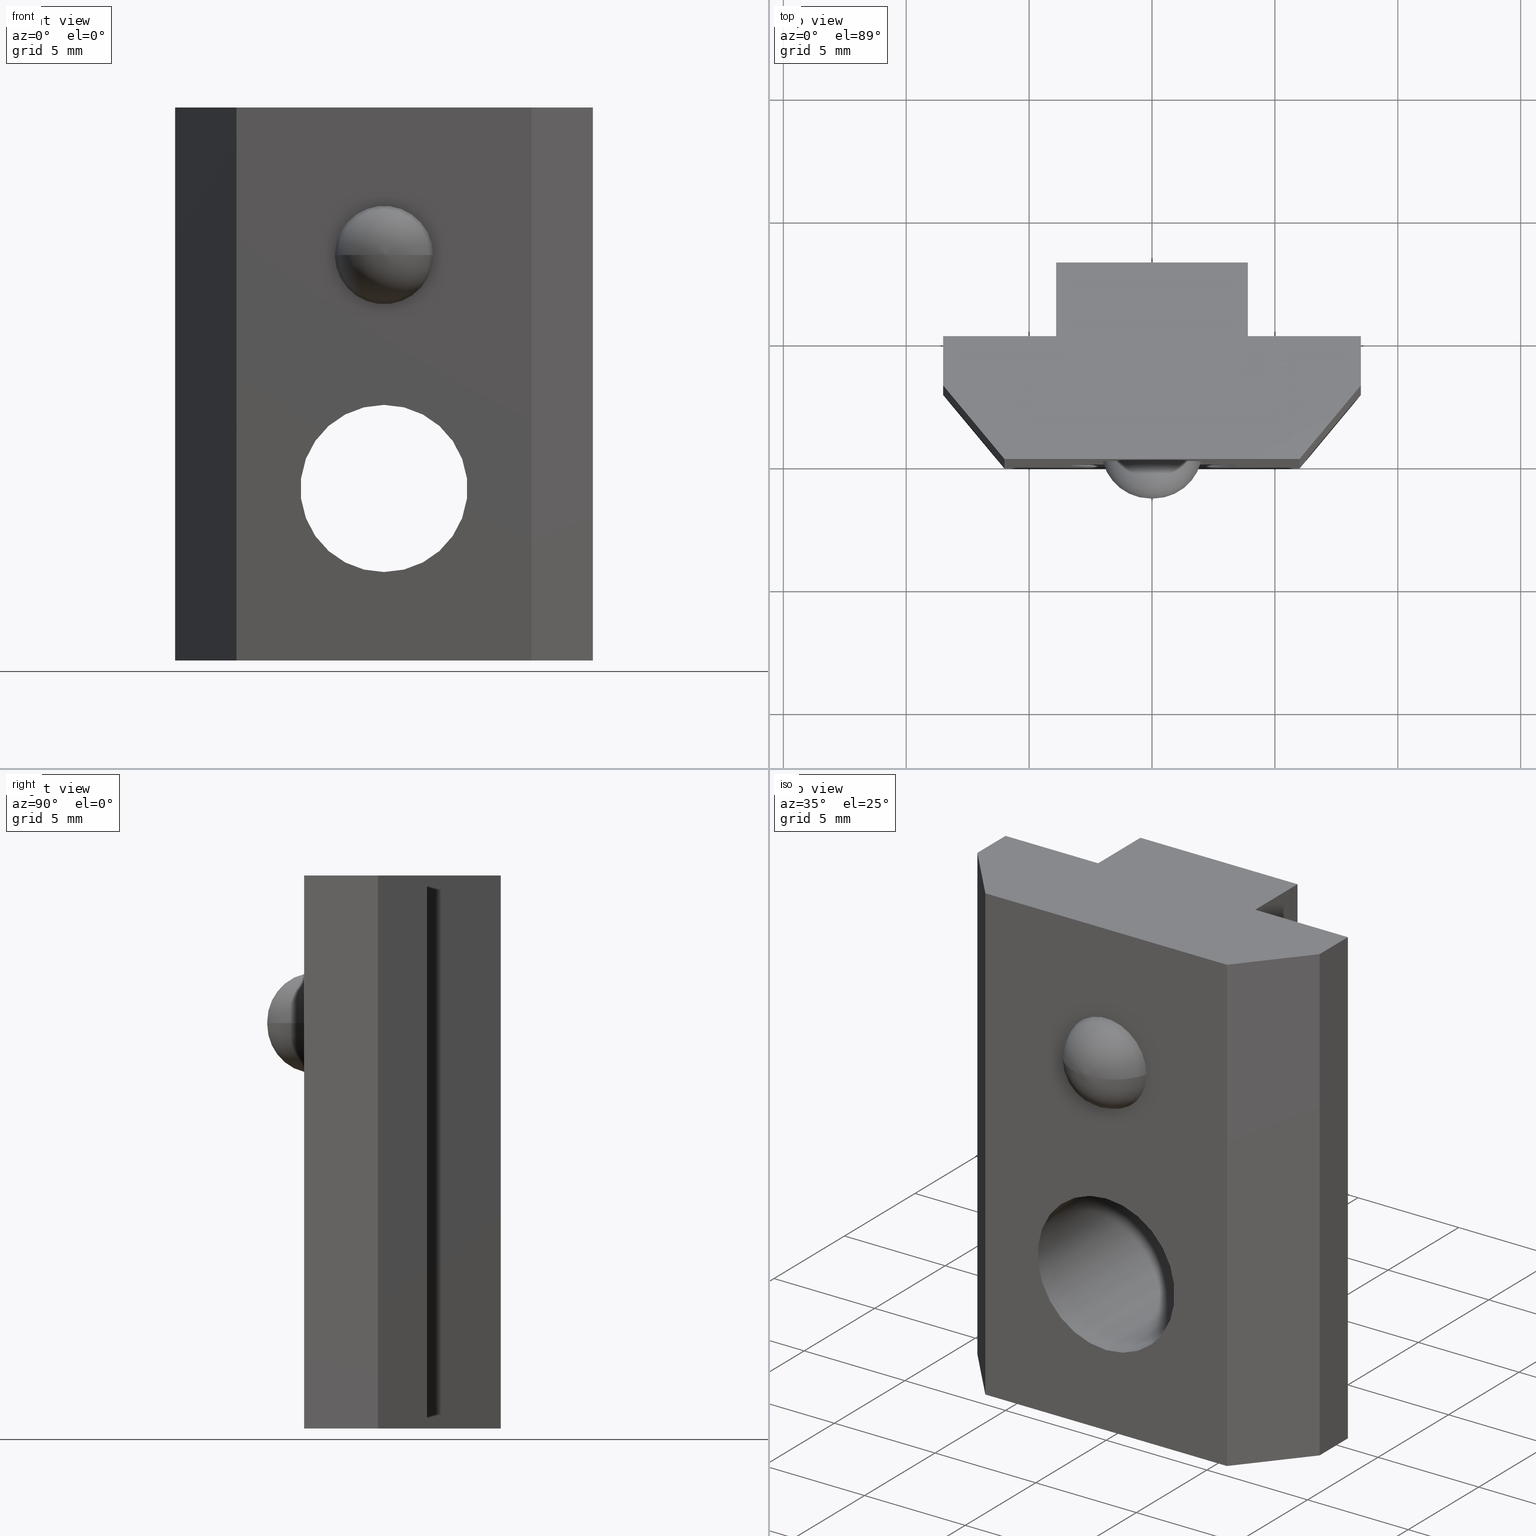
[diagram: canonical four-view strip — front | top / right | iso, engineering-drawing reading convention]
A machine part, canonical four-view strip (front | top / right | iso — engineering-drawing reading convention). The complete STEP part file that produces these views, byte-faithful:
ISO-10303-21;
HEADER;
FILE_DESCRIPTION (( 'STEP AP203' ),
    '1' );
FILE_NAME ('C32-83.STEP',
    '2018-03-26T19:23:06',
    ( 'User2' ),
    ( '' ),
    'SwSTEP 2.0',
    'SolidWorks 2007',
    '' );
FILE_SCHEMA (( 'CONFIG_CONTROL_DESIGN' ));
ENDSEC;

DATA;
#1 = CARTESIAN_POINT ( 'NONE',  ( -5.204170427930421300E-015, 7.999999999999998200, 7.000000000000000000 ) ) ;
#2 = DIRECTION ( 'NONE',  ( -0.0000000000000000000, -0.0000000000000000000, -1.000000000000000000 ) ) ;
#3 = DIRECTION ( 'NONE',  ( -1.169020134121797000E-016, -1.000000000000000000, 0.0000000000000000000 ) ) ;
#4 = CARTESIAN_POINT ( 'NONE',  ( 5.999999999999998200, -2.872400319922979400E-015, 0.0000000000000000000 ) ) ;
#5 = DIRECTION ( 'NONE',  ( 1.000000000000000000, 0.0000000000000000000, 0.0000000000000000000 ) ) ;
#6 = CARTESIAN_POINT ( 'NONE',  ( -8.500000000000001800, 3.000000000000000900, 0.0000000000000000000 ) ) ;
#7 = DIRECTION ( 'NONE',  ( 0.0000000000000000000, -1.000000000000000000, 0.0000000000000000000 ) ) ;
#8 = DIRECTION ( 'NONE',  ( -0.0000000000000000000, -0.0000000000000000000, -1.000000000000000000 ) ) ;
#9 = CARTESIAN_POINT ( 'NONE',  ( 3.899999999999997200, 4.999999999999999100, 22.50000000000000000 ) ) ;
#10 = DIRECTION ( 'NONE',  ( -1.169020134121797000E-016, -1.000000000000000000, 0.0000000000000000000 ) ) ;
#11 = DIRECTION ( 'NONE',  ( 2.224004456380521400E-016, -1.000000000000000000, 0.0000000000000000000 ) ) ;
#12 = DIRECTION ( 'NONE',  ( 0.0000000000000000000, 0.0000000000000000000, 1.000000000000000000 ) ) ;
#13 = CARTESIAN_POINT ( 'NONE',  ( -8.500000000000001800, 3.000000000000000900, 22.50000000000000000 ) ) ;
#14 = CARTESIAN_POINT ( 'NONE',  ( -3.900000000000005200, 7.999999999999998200, 22.50000000000000000 ) ) ;
#15 = DIRECTION ( 'NONE',  ( 0.0000000000000000000, 0.0000000000000000000, 1.000000000000000000 ) ) ;
#16 = DIRECTION ( 'NONE',  ( -1.000000000000000000, 0.0000000000000000000, 0.0000000000000000000 ) ) ;
#17 = DIRECTION ( 'NONE',  ( -0.0000000000000000000, 1.000000000000000000, -0.0000000000000000000 ) ) ;
#18 = DIRECTION ( 'NONE',  ( -1.169020134121797000E-016, -1.000000000000000000, 0.0000000000000000000 ) ) ;
#19 = CARTESIAN_POINT ( 'NONE',  ( 3.899999999999996400, 8.000000000000000000, 22.50000000000000000 ) ) ;
#20 = DIRECTION ( 'NONE',  ( 0.0000000000000000000, 1.000000000000000000, 0.0000000000000000000 ) ) ;
#21 = DIRECTION ( 'NONE',  ( -0.0000000000000000000, 1.000000000000000000, -0.0000000000000000000 ) ) ;
#22 = CARTESIAN_POINT ( 'NONE',  ( -5.204170427930421300E-015, 7.999999999999998200, 7.000000000000000000 ) ) ;
#23 = CARTESIAN_POINT ( 'NONE',  ( -8.500000000000001800, 5.000000000000000000, 22.50000000000000000 ) ) ;
#24 = DIRECTION ( 'NONE',  ( 0.6401843996644800400, -0.7682212795973756300, 0.0000000000000000000 ) ) ;
#25 = CARTESIAN_POINT ( 'NONE',  ( -5.204170427930421300E-015, 7.999999999999998200, 10.40000000000000000 ) ) ;
#26 = CARTESIAN_POINT ( 'NONE',  ( 0.06350832689629230800, 0.5000000000000000000, 16.50000000000000000 ) ) ;
#27 = PLANE ( 'NONE',  #259 ) ;
#28 = CARTESIAN_POINT ( 'NONE',  ( 5.204170427930421300E-015, -7.200000000000000200, 0.0000000000000000000 ) ) ;
#29 = CARTESIAN_POINT ( 'NONE',  ( 5.845100670608983900E-017, 0.5000000000000000000, 16.50000000000000000 ) ) ;
#30 = DIRECTION ( 'NONE',  ( 1.000000000000000000, 2.224004456380521400E-016, 0.0000000000000000000 ) ) ;
#31 = DIRECTION ( 'NONE',  ( -1.000000000000000000, 1.169020134121797000E-016, 0.0000000000000000000 ) ) ;
#32 = DIRECTION ( 'NONE',  ( 0.0000000000000000000, 0.0000000000000000000, -1.000000000000000000 ) ) ;
#33 = DIRECTION ( 'NONE',  ( 1.169020134121797000E-016, 1.000000000000000000, -0.0000000000000000000 ) ) ;
#34 = CARTESIAN_POINT ( 'NONE',  ( -5.204170427930421300E-015, 7.999999999999998200, 7.000000000000000000 ) ) ;
#35 = PLANE ( 'NONE',  #291 ) ;
#36 = DIRECTION ( 'NONE',  ( 0.0000000000000000000, 0.0000000000000000000, 1.000000000000000000 ) ) ;
#37 = CARTESIAN_POINT ( 'NONE',  ( -5.204170427930421300E-015, 7.999999999999998200, 7.000000000000000000 ) ) ;
#38 = DIRECTION ( 'NONE',  ( 1.169020134121797000E-016, 1.000000000000000000, -0.0000000000000000000 ) ) ;
#39 = DIRECTION ( 'NONE',  ( 1.000000000000000000, 0.0000000000000000000, -0.0000000000000000000 ) ) ;
#40 = CARTESIAN_POINT ( 'NONE',  ( 5.845100670608983900E-017, 0.5000000000000000000, 16.50000000000000000 ) ) ;
#41 = DIRECTION ( 'NONE',  ( -1.000000000000000000, 0.0000000000000000000, 0.0000000000000000000 ) ) ;
#42 = DIRECTION ( 'NONE',  ( -1.000000000000000000, 0.0000000000000000000, -0.0000000000000000000 ) ) ;
#43 = DIRECTION ( 'NONE',  ( -0.0000000000000000000, 1.000000000000000000, -0.0000000000000000000 ) ) ;
#44 = DIRECTION ( 'NONE',  ( 1.000000000000000000, -1.169020134121796800E-016, -0.0000000000000000000 ) ) ;
#45 = CARTESIAN_POINT ( 'NONE',  ( 8.499999999999998200, 3.000000000000000900, 0.0000000000000000000 ) ) ;
#46 = DIRECTION ( 'NONE',  ( -0.0000000000000000000, -0.0000000000000000000, -1.000000000000000000 ) ) ;
#47 = DIRECTION ( 'NONE',  ( 0.0000000000000000000, 0.0000000000000000000, 1.000000000000000000 ) ) ;
#48 = PLANE ( 'NONE',  #298 ) ;
#49 = DIRECTION ( 'NONE',  ( -0.0000000000000000000, 1.000000000000000000, -0.0000000000000000000 ) ) ;
#50 = DIRECTION ( 'NONE',  ( -1.000000000000000000, 1.169020134121796800E-016, 0.0000000000000000000 ) ) ;
#51 = DIRECTION ( 'NONE',  ( 1.000000000000000000, 0.0000000000000000000, 0.0000000000000000000 ) ) ;
#52 = CARTESIAN_POINT ( 'NONE',  ( -5.999999999999998200, -1.469576158976823800E-015, 22.50000000000000000 ) ) ;
#53 = DIRECTION ( 'NONE',  ( -1.224646799147353200E-016, 1.431636765391068300E-032, 1.000000000000000000 ) ) ;
#54 = CARTESIAN_POINT ( 'NONE',  ( -2.648153673532449300E-031, -2.168404344971008900E-015, 16.50000000000000000 ) ) ;
#55 = DIRECTION ( 'NONE',  ( -0.0000000000000000000, 0.0000000000000000000, -1.000000000000000000 ) ) ;
#56 = CARTESIAN_POINT ( 'NONE',  ( 5.999999999999998200, -2.872400319922979400E-015, 22.50000000000000000 ) ) ;
#57 = PLANE ( 'NONE',  #237 ) ;
#58 = CARTESIAN_POINT ( 'NONE',  ( -1.753530201182695600E-016, -1.500000000000000000, 16.50000000000000000 ) ) ;
#59 = DIRECTION ( 'NONE',  ( 1.000000000000000000, 3.771137991253928100E-016, 0.0000000000000000000 ) ) ;
#60 = CARTESIAN_POINT ( 'NONE',  ( -0.06350832689629219700, 0.5000000000000000000, 16.50000000000000000 ) ) ;
#61 = DIRECTION ( 'NONE',  ( 1.000000000000000000, 8.673617379884042400E-016, -0.0000000000000000000 ) ) ;
#62 = DIRECTION ( 'NONE',  ( -1.000000000000000000, 1.169020134121797000E-016, 0.0000000000000000000 ) ) ;
#63 = CARTESIAN_POINT ( 'NONE',  ( -5.204170427930421300E-015, -6.938893903907228400E-015, 7.000000000000000000 ) ) ;
#64 = DIRECTION ( 'NONE',  ( -0.0000000000000000000, -0.0000000000000000000, -1.000000000000000000 ) ) ;
#65 = DIRECTION ( 'NONE',  ( 3.771137991253928100E-016, -1.000000000000000000, 0.0000000000000000000 ) ) ;
#66 = PLANE ( 'NONE',  #278 ) ;
#67 = DIRECTION ( 'NONE',  ( 0.0000000000000000000, 0.0000000000000000000, 1.000000000000000000 ) ) ;
#68 = CARTESIAN_POINT ( 'NONE',  ( -5.204170427930421300E-015, -6.938893903907228400E-015, 7.000000000000000000 ) ) ;
#69 = CARTESIAN_POINT ( 'NONE',  ( 5.204170427930421300E-015, -7.200000000000000200, 22.50000000000000000 ) ) ;
#70 = DIRECTION ( 'NONE',  ( -1.000000000000000000, -3.771137991253926600E-016, 0.0000000000000000000 ) ) ;
#71 = DIRECTION ( 'NONE',  ( 0.0000000000000000000, -1.000000000000000000, 0.0000000000000000000 ) ) ;
#72 = CARTESIAN_POINT ( 'NONE',  ( 8.499999999999998200, 3.000000000000000900, 22.50000000000000000 ) ) ;
#73 = DIRECTION ( 'NONE',  ( -1.169020134121797000E-016, -1.000000000000000000, 0.0000000000000000000 ) ) ;
#74 = DIRECTION ( 'NONE',  ( -0.6401843996644800400, 0.7682212795973756300, 0.0000000000000000000 ) ) ;
#75 = CARTESIAN_POINT ( 'NONE',  ( 5.999999999999998200, -2.872400319922979400E-015, 22.50000000000000000 ) ) ;
#76 = CARTESIAN_POINT ( 'NONE',  ( -2.648153673532449300E-031, -2.168404344971008900E-015, 16.50000000000000000 ) ) ;
#77 = CARTESIAN_POINT ( 'NONE',  ( -3.900000000000005200, 7.999999999999998200, 22.50000000000000000 ) ) ;
#78 = CARTESIAN_POINT ( 'NONE',  ( 8.499999999999998200, 3.000000000000000900, 22.50000000000000000 ) ) ;
#79 = DIRECTION ( 'NONE',  ( -1.000000000000000000, 0.0000000000000000000, -0.0000000000000000000 ) ) ;
#80 = CARTESIAN_POINT ( 'NONE',  ( -8.500000000000001800, 3.000000000000000900, 22.50000000000000000 ) ) ;
#81 = DIRECTION ( 'NONE',  ( 0.7682212795973757400, 0.6401843996644801500, -0.0000000000000000000 ) ) ;
#82 = DIRECTION ( 'NONE',  ( -0.0000000000000000000, -0.0000000000000000000, -1.000000000000000000 ) ) ;
#83 = CARTESIAN_POINT ( 'NONE',  ( 8.499999999999998200, 5.000000000000000900, 22.50000000000000000 ) ) ;
#84 = DIRECTION ( 'NONE',  ( -0.0000000000000000000, 0.0000000000000000000, -1.000000000000000000 ) ) ;
#85 = DIRECTION ( 'NONE',  ( -0.0000000000000000000, -0.0000000000000000000, -1.000000000000000000 ) ) ;
#86 = DIRECTION ( 'NONE',  ( -0.0000000000000000000, -0.0000000000000000000, -1.000000000000000000 ) ) ;
#87 = CARTESIAN_POINT ( 'NONE',  ( 3.899999999999997200, 4.999999999999999100, 22.50000000000000000 ) ) ;
#88 = CARTESIAN_POINT ( 'NONE',  ( -3.900000000000005200, 7.999999999999998200, 0.0000000000000000000 ) ) ;
#89 = DIRECTION ( 'NONE',  ( 1.000000000000000000, 0.0000000000000000000, 0.0000000000000000000 ) ) ;
#90 = CARTESIAN_POINT ( 'NONE',  ( -8.500000000000001800, 5.000000000000000000, 22.50000000000000000 ) ) ;
#91 = CARTESIAN_POINT ( 'NONE',  ( -8.500000000000001800, 5.000000000000000000, 0.0000000000000000000 ) ) ;
#92 = DIRECTION ( 'NONE',  ( -1.000000000000000000, -2.224004456380521400E-016, 0.0000000000000000000 ) ) ;
#93 = DIRECTION ( 'NONE',  ( -1.000000000000000000, 0.0000000000000000000, 0.0000000000000000000 ) ) ;
#94 = DIRECTION ( 'NONE',  ( -1.000000000000000000, -3.771137991253926600E-016, 0.0000000000000000000 ) ) ;
#95 = CARTESIAN_POINT ( 'NONE',  ( -3.900000000000005200, 7.999999999999998200, 22.50000000000000000 ) ) ;
#96 = DIRECTION ( 'NONE',  ( 8.673617379884041400E-016, -1.000000000000000000, 0.0000000000000000000 ) ) ;
#97 = CARTESIAN_POINT ( 'NONE',  ( -1.753530201182695600E-016, -1.500000000000000000, 16.50000000000000000 ) ) ;
#98 = DIRECTION ( 'NONE',  ( 0.6401843996644793800, 0.7682212795973761800, 0.0000000000000000000 ) ) ;
#99 = CARTESIAN_POINT ( 'NONE',  ( -8.500000000000001800, 5.000000000000000000, 22.50000000000000000 ) ) ;
#100 = CARTESIAN_POINT ( 'NONE',  ( -4.787790516220321600E-015, 7.999999999999998200, 3.600000000000001400 ) ) ;
#101 = DIRECTION ( 'NONE',  ( -0.0000000000000000000, 1.000000000000000000, -0.0000000000000000000 ) ) ;
#102 = CARTESIAN_POINT ( 'NONE',  ( -1.753530201182695600E-016, -1.500000000000000000, 16.50000000000000000 ) ) ;
#103 = DIRECTION ( 'NONE',  ( 0.0000000000000000000, 0.0000000000000000000, 1.000000000000000000 ) ) ;
#104 = PLANE ( 'NONE',  #249 ) ;
#105 = DIRECTION ( 'NONE',  ( 0.0000000000000000000, 1.000000000000000000, 0.0000000000000000000 ) ) ;
#106 = DIRECTION ( 'NONE',  ( 0.0000000000000000000, 0.0000000000000000000, -1.000000000000000000 ) ) ;
#107 = DIRECTION ( 'NONE',  ( 1.000000000000000000, -1.169020134121797000E-016, 0.0000000000000000000 ) ) ;
#108 = DIRECTION ( 'NONE',  ( -0.0000000000000000000, 1.000000000000000000, -0.0000000000000000000 ) ) ;
#109 = DIRECTION ( 'NONE',  ( -0.0000000000000000000, 1.000000000000000000, -0.0000000000000000000 ) ) ;
#110 = CARTESIAN_POINT ( 'NONE',  ( 5.999999999999998200, -2.872400319922979400E-015, 22.50000000000000000 ) ) ;
#111 = CARTESIAN_POINT ( 'NONE',  ( 8.499999999999998200, 5.000000000000000900, 0.0000000000000000000 ) ) ;
#112 = DIRECTION ( 'NONE',  ( -1.000000000000000000, -2.224004456380521400E-016, 0.0000000000000000000 ) ) ;
#113 = CARTESIAN_POINT ( 'NONE',  ( -3.900000000000002600, 5.000000000000000000, 22.50000000000000000 ) ) ;
#114 = CARTESIAN_POINT ( 'NONE',  ( 3.899999999999996400, 8.000000000000000000, 0.0000000000000000000 ) ) ;
#115 = DIRECTION ( 'NONE',  ( 8.673617379884041400E-016, -1.000000000000000000, 0.0000000000000000000 ) ) ;
#116 = CARTESIAN_POINT ( 'NONE',  ( 3.899999999999996400, 8.000000000000000000, 22.50000000000000000 ) ) ;
#117 = DIRECTION ( 'NONE',  ( -1.000000000000000000, 1.169020134121796800E-016, 0.0000000000000000000 ) ) ;
#118 = CARTESIAN_POINT ( 'NONE',  ( 3.899999999999996400, 8.000000000000000000, 22.50000000000000000 ) ) ;
#119 = DIRECTION ( 'NONE',  ( -0.0000000000000000000, -0.0000000000000000000, -1.000000000000000000 ) ) ;
#120 = PLANE ( 'NONE',  #271 ) ;
#121 = DIRECTION ( 'NONE',  ( 0.6401843996644800400, -0.7682212795973756300, 0.0000000000000000000 ) ) ;
#122 = DIRECTION ( 'NONE',  ( 1.000000000000000000, -1.169020134121796800E-016, -0.0000000000000000000 ) ) ;
#123 = CARTESIAN_POINT ( 'NONE',  ( 8.499999999999998200, 5.000000000000000900, 22.50000000000000000 ) ) ;
#124 = CARTESIAN_POINT ( 'NONE',  ( 3.899999999999997200, 4.999999999999999100, 0.0000000000000000000 ) ) ;
#125 = DIRECTION ( 'NONE',  ( -2.891205793294677800E-016, 1.000000000000000000, 0.0000000000000000000 ) ) ;
#126 = CARTESIAN_POINT ( 'NONE',  ( -3.900000000000002600, 5.000000000000000000, 0.0000000000000000000 ) ) ;
#127 = CARTESIAN_POINT ( 'NONE',  ( 8.499999999999998200, 5.000000000000000900, 22.50000000000000000 ) ) ;
#128 = DIRECTION ( 'NONE',  ( -0.0000000000000000000, -0.0000000000000000000, -1.000000000000000000 ) ) ;
#129 = CARTESIAN_POINT ( 'NONE',  ( 5.999999999999998200, -2.872400319922979400E-015, 0.0000000000000000000 ) ) ;
#130 = DIRECTION ( 'NONE',  ( -2.891205793294677800E-016, 1.000000000000000000, 0.0000000000000000000 ) ) ;
#131 = DIRECTION ( 'NONE',  ( -0.0000000000000000000, 1.000000000000000000, -0.0000000000000000000 ) ) ;
#132 = CARTESIAN_POINT ( 'NONE',  ( -8.500000000000001800, 3.000000000000000900, 22.50000000000000000 ) ) ;
#133 = PLANE ( 'NONE',  #297 ) ;
#134 = DIRECTION ( 'NONE',  ( 0.6401843996644793800, 0.7682212795973761800, 0.0000000000000000000 ) ) ;
#135 = DIRECTION ( 'NONE',  ( -1.169020134121797000E-016, -1.000000000000000000, 0.0000000000000000000 ) ) ;
#136 = VECTOR ( 'NONE', #92, 1000.000000000000000 ) ;
#137 = LINE ( 'NONE', #78, #139 ) ;
#138 = CIRCLE ( 'NONE', #301, 2.000000000000000000 ) ;
#139 = VECTOR ( 'NONE', #8, 1000.000000000000000 ) ;
#140 = LINE ( 'NONE', #129, #141 ) ;
#141 = VECTOR ( 'NONE', #134, 1000.000000000000300 ) ;
#142 = CIRCLE ( 'NONE', #283, 2.000000000000000400 ) ;
#143 = CIRCLE ( 'NONE', #284, 3.399999999999997700 ) ;
#144 = LINE ( 'NONE', #75, #146 ) ;
#145 = CIRCLE ( 'NONE', #285, 3.399999999999997700 ) ;
#146 = VECTOR ( 'NONE', #64, 1000.000000000000000 ) ;
#147 = LINE ( 'NONE', #19, #149 ) ;
#148 = CIRCLE ( 'NONE', #286, 0.06350832689629225300 ) ;
#149 = VECTOR ( 'NONE', #119, 1000.000000000000000 ) ;
#150 = LINE ( 'NONE', #126, #151 ) ;
#151 = VECTOR ( 'NONE', #41, 1000.000000000000000 ) ;
#152 = LINE ( 'NONE', #132, #153 ) ;
#153 = VECTOR ( 'NONE', #2, 1000.000000000000000 ) ;
#154 = LINE ( 'NONE', #77, #155 ) ;
#155 = VECTOR ( 'NONE', #128, 1000.000000000000000 ) ;
#156 = LINE ( 'NONE', #72, #157 ) ;
#157 = VECTOR ( 'NONE', #20, 1000.000000000000000 ) ;
#158 = LINE ( 'NONE', #100, #159 ) ;
#159 = VECTOR ( 'NONE', #49, 1000.000000000000000 ) ;
#160 = LINE ( 'NONE', #4, #162 ) ;
#161 = CIRCLE ( 'NONE', #287, 2.000000000000000000 ) ;
#162 = VECTOR ( 'NONE', #122, 1000.000000000000000 ) ;
#163 = LINE ( 'NONE', #90, #164 ) ;
#164 = VECTOR ( 'NONE', #7, 1000.000000000000000 ) ;
#165 = LINE ( 'NONE', #80, #166 ) ;
#166 = VECTOR ( 'NONE', #24, 1000.000000000000200 ) ;
#167 = LINE ( 'NONE', #6, #168 ) ;
#168 = VECTOR ( 'NONE', #121, 1000.000000000000200 ) ;
#169 = LINE ( 'NONE', #127, #170 ) ;
#170 = VECTOR ( 'NONE', #85, 1000.000000000000000 ) ;
#171 = LINE ( 'NONE', #9, #519 ) ;
#172 = VECTOR ( 'NONE', #71, 1000.000000000000000 ) ;
#173 = LINE ( 'NONE', #110, #176 ) ;
#174 = LINE ( 'NONE', #111, #177 ) ;
#175 = LINE ( 'NONE', #87, #384 ) ;
#176 = VECTOR ( 'NONE', #44, 1000.000000000000000 ) ;
#177 = VECTOR ( 'NONE', #70, 1000.000000000000000 ) ;
#178 = LINE ( 'NONE', #114, #180 ) ;
#179 = VECTOR ( 'NONE', #94, 1000.000000000000000 ) ;
#180 = VECTOR ( 'NONE', #112, 1000.000000000000000 ) ;
#181 = LINE ( 'NONE', #83, #179 ) ;
#182 = ORIENTED_EDGE ( 'NONE', *, *, #236, .F. ) ;
#183 = ORIENTED_EDGE ( 'NONE', *, *, #241, .F. ) ;
#184 = ORIENTED_EDGE ( 'NONE', *, *, #314, .F. ) ;
#185 = ORIENTED_EDGE ( 'NONE', *, *, #267, .F. ) ;
#186 = ORIENTED_EDGE ( 'NONE', *, *, #309, .T. ) ;
#187 = ORIENTED_EDGE ( 'NONE', *, *, #310, .T. ) ;
#188 = ORIENTED_EDGE ( 'NONE', *, *, #318, .T. ) ;
#189 = ORIENTED_EDGE ( 'NONE', *, *, #265, .T. ) ;
#190 = ORIENTED_EDGE ( 'NONE', *, *, #274, .T. ) ;
#191 = ORIENTED_EDGE ( 'NONE', *, *, #313, .T. ) ;
#192 = ORIENTED_EDGE ( 'NONE', *, *, #305, .T. ) ;
#193 = ORIENTED_EDGE ( 'NONE', *, *, #266, .T. ) ;
#194 = ORIENTED_EDGE ( 'NONE', *, *, #303, .T. ) ;
#195 = ORIENTED_EDGE ( 'NONE', *, *, #316, .T. ) ;
#196 = ORIENTED_EDGE ( 'NONE', *, *, #264, .F. ) ;
#197 = ORIENTED_EDGE ( 'NONE', *, *, #310, .F. ) ;
#198 = ORIENTED_EDGE ( 'NONE', *, *, #311, .T. ) ;
#199 = ORIENTED_EDGE ( 'NONE', *, *, #277, .F. ) ;
#200 = ORIENTED_EDGE ( 'NONE', *, *, #257, .F. ) ;
#201 = ORIENTED_EDGE ( 'NONE', *, *, #317, .T. ) ;
#202 = ORIENTED_EDGE ( 'NONE', *, *, #312, .T. ) ;
#203 = ORIENTED_EDGE ( 'NONE', *, *, #292, .F. ) ;
#204 = ORIENTED_EDGE ( 'NONE', *, *, #308, .T. ) ;
#205 = ORIENTED_EDGE ( 'NONE', *, *, #238, .F. ) ;
#206 = ORIENTED_EDGE ( 'NONE', *, *, #264, .T. ) ;
#207 = ORIENTED_EDGE ( 'NONE', *, *, #292, .T. ) ;
#208 = ORIENTED_EDGE ( 'NONE', *, *, #266, .F. ) ;
#209 = ORIENTED_EDGE ( 'NONE', *, *, #281, .T. ) ;
#210 = ORIENTED_EDGE ( 'NONE', *, *, #268, .F. ) ;
#211 = ORIENTED_EDGE ( 'NONE', *, *, #279, .F. ) ;
#212 = ORIENTED_EDGE ( 'NONE', *, *, #277, .T. ) ;
#213 = ORIENTED_EDGE ( 'NONE', *, *, #305, .F. ) ;
#214 = ORIENTED_EDGE ( 'NONE', *, *, #280, .T. ) ;
#215 = ORIENTED_EDGE ( 'NONE', *, *, #235, .F. ) ;
#216 = ORIENTED_EDGE ( 'NONE', *, *, #281, .F. ) ;
#217 = ORIENTED_EDGE ( 'NONE', *, *, #243, .T. ) ;
#218 = ORIENTED_EDGE ( 'NONE', *, *, #316, .F. ) ;
#219 = ORIENTED_EDGE ( 'NONE', *, *, #306, .T. ) ;
#220 = ORIENTED_EDGE ( 'NONE', *, *, #276, .F. ) ;
#221 = ORIENTED_EDGE ( 'NONE', *, *, #236, .T. ) ;
#222 = CLOSED_SHELL ( 'NONE', ( #389, #390, #405, #404, #406, #397, #407, #400, #402, #403, #401, #398, #399, #392, #393, #391, #394 ) ) ;
#223 = ORIENTED_EDGE ( 'NONE', *, *, #312, .F. ) ;
#224 = ORIENTED_EDGE ( 'NONE', *, *, #235, .T. ) ;
#225 = ORIENTED_EDGE ( 'NONE', *, *, #306, .F. ) ;
#226 = ORIENTED_EDGE ( 'NONE', *, *, #280, .F. ) ;
#227 = ORIENTED_EDGE ( 'NONE', *, *, #319, .T. ) ;
#228 = ORIENTED_EDGE ( 'NONE', *, *, #315, .T. ) ;
#229 = ORIENTED_EDGE ( 'NONE', *, *, #293, .T. ) ;
#230 = ORIENTED_EDGE ( 'NONE', *, *, #275, .F. ) ;
#231 = ORIENTED_EDGE ( 'NONE', *, *, #315, .F. ) ;
#232 = ORIENTED_EDGE ( 'NONE', *, *, #307, .T. ) ;
#233 = EDGE_CURVE ( 'NONE', #511, #517, #380, .T. ) ;
#234 = AXIS2_PLACEMENT_3D ( 'NONE', #40, #33, #62 ) ;
#235 = EDGE_CURVE ( 'NONE', #504, #503, #382, .T. ) ;
#236 = EDGE_CURVE ( 'NONE', #497, #510, #379, .T. ) ;
#237 = AXIS2_PLACEMENT_3D ( 'NONE', #13, #81, #74 ) ;
#238 = EDGE_CURVE ( 'NONE', #496, #514, #173, .T. ) ;
#239 = CC_DESIGN_PERSON_AND_ORGANIZATION_ASSIGNMENT ( #577, #481, ( #246 ) ) ;
#240 = APPROVAL ( #484, 'UNSPECIFIED' ) ;
#241 = EDGE_CURVE ( 'NONE', #510, #500, #174, .T. ) ;
#242 = PRODUCT_DEFINITION ( 'UNKNOWN', '', #246, #476 ) ;
#243 = EDGE_CURVE ( 'NONE', #491, #503, #385, .T. ) ;
#244 = CC_DESIGN_APPROVAL ( #269, ( #242 ) ) ;
#245 = CC_DESIGN_DATE_AND_TIME_ASSIGNMENT ( #569, #479, ( #242 ) ) ;
#246 = PRODUCT_DEFINITION_FORMATION_WITH_SPECIFIED_SOURCE ( 'ANY', '', #371, .NOT_KNOWN. ) ;
#247 = APPROVAL ( #486, 'UNSPECIFIED' ) ;
#248 = CC_DESIGN_APPROVAL ( #247, ( #246 ) ) ;
#249 = AXIS2_PLACEMENT_3D ( 'NONE', #28, #106, #42 ) ;
#250 = CC_DESIGN_PERSON_AND_ORGANIZATION_ASSIGNMENT ( #578, #482, ( #246 ) ) ;
#251 = CC_DESIGN_PERSON_AND_ORGANIZATION_ASSIGNMENT ( #565, #420, ( #242 ) ) ;
#252 = PRODUCT_RELATED_PRODUCT_CATEGORY ( 'detail', '', ( #371 ) ) ;
#253 = CC_DESIGN_SECURITY_CLASSIFICATION ( #579, ( #246 ) ) ;
#254 = CC_DESIGN_PERSON_AND_ORGANIZATION_ASSIGNMENT ( #557, #413, ( #371 ) ) ;
#255 = CC_DESIGN_DATE_AND_TIME_ASSIGNMENT ( #584, #478, ( #579 ) ) ;
#256 = CC_DESIGN_APPROVAL ( #240, ( #579 ) ) ;
#257 = EDGE_CURVE ( 'NONE', #505, #500, #175, .T. ) ;
#258 = AXIS2_PLACEMENT_3D ( 'NONE', #29, #38, #31 ) ;
#259 = AXIS2_PLACEMENT_3D ( 'NONE', #102, #18, #107 ) ;
#260 = AXIS2_PLACEMENT_3D ( 'NONE', #37, #101, #36 ) ;
#261 = AXIS2_PLACEMENT_3D ( 'NONE', #439, #438, #434 ) ;
#262 = AXIS2_PLACEMENT_3D ( 'NONE', #431, #430, #440 ) ;
#263 = AXIS2_PLACEMENT_3D ( 'NONE', #442, #437, #424 ) ;
#264 = EDGE_CURVE ( 'NONE', #496, #493, #383, .T. ) ;
#265 = EDGE_CURVE ( 'NONE', #516, #511, #387, .T. ) ;
#266 = EDGE_CURVE ( 'NONE', #506, #505, #181, .T. ) ;
#267 = EDGE_CURVE ( 'NONE', #494, #498, #178, .T. ) ;
#268 = EDGE_CURVE ( 'NONE', #501, #489, #421, .T. ) ;
#269 = APPROVAL ( #410, 'UNSPECIFIED' ) ;
#270 = CC_DESIGN_PERSON_AND_ORGANIZATION_ASSIGNMENT ( #580, #485, ( #579 ) ) ;
#271 = AXIS2_PLACEMENT_3D ( 'NONE', #123, #65, #59 ) ;
#272 = EDGE_CURVE ( 'NONE', #513, #502, #422, .T. ) ;
#273 = EDGE_CURVE ( 'NONE', #498, #517, #370, .T. ) ;
#274 = EDGE_CURVE ( 'NONE', #490, #516, #477, .T. ) ;
#275 = EDGE_CURVE ( 'NONE', #509, #489, #138, .T. ) ;
#276 = EDGE_CURVE ( 'NONE', #492, #497, #137, .T. ) ;
#277 = EDGE_CURVE ( 'NONE', #495, #497, #140, .T. ) ;
#278 = AXIS2_PLACEMENT_3D ( 'NONE', #14, #61, #429 ) ;
#279 = EDGE_CURVE ( 'NONE', #489, #501, #142, .T. ) ;
#280 = EDGE_CURVE ( 'NONE', #504, #499, #143, .T. ) ;
#281 = EDGE_CURVE ( 'NONE', #499, #504, #145, .T. ) ;
#282 = AXIS2_PLACEMENT_3D ( 'NONE', #76, #10, #117 ) ;
#283 = AXIS2_PLACEMENT_3D ( 'NONE', #54, #73, #50 ) ;
#284 = AXIS2_PLACEMENT_3D ( 'NONE', #68, #21, #15 ) ;
#285 = AXIS2_PLACEMENT_3D ( 'NONE', #63, #131, #67 ) ;
#286 = AXIS2_PLACEMENT_3D ( 'NONE', #97, #135, #89 ) ;
#287 = AXIS2_PLACEMENT_3D ( 'NONE', #60, #84, #93 ) ;
#288 = AXIS2_PLACEMENT_3D ( 'NONE', #58, #3, #51 ) ;
#289 = AXIS2_PLACEMENT_3D ( 'NONE', #22, #109, #47 ) ;
#290 = AXIS2_PLACEMENT_3D ( 'NONE', #416, #412, #417 ) ;
#291 = AXIS2_PLACEMENT_3D ( 'NONE', #23, #39, #55 ) ;
#292 = EDGE_CURVE ( 'NONE', #514, #495, #144, .T. ) ;
#293 = EDGE_CURVE ( 'NONE', #509, #512, #148, .T. ) ;
#294 = AXIS2_PLACEMENT_3D ( 'NONE', #425, #435, #443 ) ;
#295 = EDGE_CURVE ( 'NONE', #490, #494, #147, .T. ) ;
#296 = AXIS2_PLACEMENT_3D ( 'NONE', #436, #444, #427 ) ;
#297 = AXIS2_PLACEMENT_3D ( 'NONE', #69, #32, #79 ) ;
#298 = AXIS2_PLACEMENT_3D ( 'NONE', #118, #11, #30 ) ;
#299 = EDGE_CURVE ( 'NONE', #517, #513, #150, .T. ) ;
#300 = AXIS2_PLACEMENT_3D ( 'NONE', #34, #17, #103 ) ;
#301 = AXIS2_PLACEMENT_3D ( 'NONE', #26, #53, #5 ) ;
#302 = AXIS2_PLACEMENT_3D ( 'NONE', #1, #108, #12 ) ;
#303 = EDGE_CURVE ( 'NONE', #515, #502, #152, .T. ) ;
#304 = EDGE_CURVE ( 'NONE', #516, #498, #154, .T. ) ;
#305 = EDGE_CURVE ( 'NONE', #492, #506, #156, .T. ) ;
#306 = EDGE_CURVE ( 'NONE', #499, #491, #158, .T. ) ;
#307 = EDGE_CURVE ( 'NONE', #512, #501, #161, .T. ) ;
#308 = EDGE_CURVE ( 'NONE', #493, #495, #160, .T. ) ;
#309 = EDGE_CURVE ( 'NONE', #508, #515, #163, .T. ) ;
#310 = EDGE_CURVE ( 'NONE', #515, #496, #165, .T. ) ;
#311 = EDGE_CURVE ( 'NONE', #502, #493, #167, .T. ) ;
#312 = EDGE_CURVE ( 'NONE', #506, #510, #169, .T. ) ;
#313 = EDGE_CURVE ( 'NONE', #505, #490, #171, .T. ) ;
#314 = EDGE_CURVE ( 'NONE', #500, #494, #520, .T. ) ;
#315 = EDGE_CURVE ( 'NONE', #512, #509, #523, .T. ) ;
#316 = EDGE_CURVE ( 'NONE', #514, #492, #522, .T. ) ;
#317 = EDGE_CURVE ( 'NONE', #508, #513, #525, .T. ) ;
#318 = EDGE_CURVE ( 'NONE', #511, #508, #527, .T. ) ;
#319 = EDGE_CURVE ( 'NONE', #503, #491, #530, .T. ) ;
#320 = ORIENTED_EDGE ( 'NONE', *, *, #273, .F. ) ;
#321 = ORIENTED_EDGE ( 'NONE', *, *, #243, .F. ) ;
#322 = ORIENTED_EDGE ( 'NONE', *, *, #257, .T. ) ;
#323 = ORIENTED_EDGE ( 'NONE', *, *, #299, .F. ) ;
#324 = ORIENTED_EDGE ( 'NONE', *, *, #273, .T. ) ;
#325 = ORIENTED_EDGE ( 'NONE', *, *, #311, .F. ) ;
#326 = ORIENTED_EDGE ( 'NONE', *, *, #304, .T. ) ;
#327 = ORIENTED_EDGE ( 'NONE', *, *, #319, .F. ) ;
#328 = ORIENTED_EDGE ( 'NONE', *, *, #304, .F. ) ;
#329 = ORIENTED_EDGE ( 'NONE', *, *, #276, .T. ) ;
#330 = ORIENTED_EDGE ( 'NONE', *, *, #233, .T. ) ;
#331 = ORIENTED_EDGE ( 'NONE', *, *, #265, .F. ) ;
#332 = ORIENTED_EDGE ( 'NONE', *, *, #318, .F. ) ;
#333 = ORIENTED_EDGE ( 'NONE', *, *, #317, .F. ) ;
#334 = ORIENTED_EDGE ( 'NONE', *, *, #268, .T. ) ;
#335 = ORIENTED_EDGE ( 'NONE', *, *, #272, .F. ) ;
#336 = ORIENTED_EDGE ( 'NONE', *, *, #267, .T. ) ;
#337 = ORIENTED_EDGE ( 'NONE', *, *, #303, .F. ) ;
#338 = ORIENTED_EDGE ( 'NONE', *, *, #299, .T. ) ;
#339 = ORIENTED_EDGE ( 'NONE', *, *, #293, .F. ) ;
#340 = ORIENTED_EDGE ( 'NONE', *, *, #313, .F. ) ;
#341 = ORIENTED_EDGE ( 'NONE', *, *, #275, .T. ) ;
#342 = ORIENTED_EDGE ( 'NONE', *, *, #309, .F. ) ;
#343 = ORIENTED_EDGE ( 'NONE', *, *, #314, .T. ) ;
#344 = ORIENTED_EDGE ( 'NONE', *, *, #274, .F. ) ;
#345 = ORIENTED_EDGE ( 'NONE', *, *, #241, .T. ) ;
#346 = ORIENTED_EDGE ( 'NONE', *, *, #279, .T. ) ;
#347 = ORIENTED_EDGE ( 'NONE', *, *, #238, .T. ) ;
#348 = ORIENTED_EDGE ( 'NONE', *, *, #308, .F. ) ;
#349 = ORIENTED_EDGE ( 'NONE', *, *, #295, .T. ) ;
#350 = ORIENTED_EDGE ( 'NONE', *, *, #233, .F. ) ;
#351 = ORIENTED_EDGE ( 'NONE', *, *, #272, .T. ) ;
#352 = ORIENTED_EDGE ( 'NONE', *, *, #307, .F. ) ;
#353 = EDGE_LOOP ( 'NONE', ( #345, #200, #208, #202 ) ) ;
#354 = ORIENTED_EDGE ( 'NONE', *, *, #295, .F. ) ;
#355 = EDGE_LOOP ( 'NONE', ( #199, #348, #325, #335, #323, #320, #185, #184, #183, #182 ) ) ;
#356 = EDGE_LOOP ( 'NONE', ( #214, #209 ) ) ;
#357 = EDGE_LOOP ( 'NONE', ( #195, #192, #193, #191, #190, #189, #188, #186, #187, #347 ) ) ;
#358 = EDGE_LOOP ( 'NONE', ( #230, #231, #232, #334 ) ) ;
#359 = EDGE_LOOP ( 'NONE', ( #212, #220, #218, #207 ) ) ;
#360 = EDGE_LOOP ( 'NONE', ( #204, #203, #205, #206 ) ) ;
#361 = EDGE_LOOP ( 'NONE', ( #351, #337, #342, #201 ) ) ;
#362 = EDGE_LOOP ( 'NONE', ( #343, #354, #340, #322 ) ) ;
#363 = EDGE_LOOP ( 'NONE', ( #225, #226, #224, #227 ) ) ;
#364 = EDGE_LOOP ( 'NONE', ( #221, #223, #213, #329 ) ) ;
#365 = EDGE_LOOP ( 'NONE', ( #324, #350, #331, #326 ) ) ;
#366 = EDGE_LOOP ( 'NONE', ( #228, #229 ) ) ;
#367 = EDGE_LOOP ( 'NONE', ( #336, #328, #344, #349 ) ) ;
#368 = EDGE_LOOP ( 'NONE', ( #327, #321 ) ) ;
#369 = EDGE_LOOP ( 'NONE', ( #198, #196, #197, #194 ) ) ;
#370 = LINE ( 'NONE', #88, #408 ) ;
#371 = PRODUCT ( 'C32-83', 'C32-83', '', ( #414 ) ) ;
#372 = PERSON ( 'UNSPECIFIED', 'UNSPECIFIED', 'UNSPECIFIED', ('UNSPECIFIED'), ('UNSPECIFIED'), ('UNSPECIFIED') ) ;
#373 = EDGE_LOOP ( 'NONE', ( #339, #341, #346, #352 ) ) ;
#374 = EDGE_LOOP ( 'NONE', ( #216, #219, #217, #215 ) ) ;
#375 = EDGE_LOOP ( 'NONE', ( #338, #333, #332, #330 ) ) ;
#376 = VECTOR ( 'NONE', #43, 1000.000000000000000 ) ;
#377 = VECTOR ( 'NONE', #507, 1000.000000000000000 ) ;
#378 = VECTOR ( 'NONE', #105, 1000.000000000000000 ) ;
#379 = LINE ( 'NONE', #45, #378 ) ;
#380 = LINE ( 'NONE', #488, #377 ) ;
#381 = EDGE_LOOP ( 'NONE', ( #210, #211 ) ) ;
#382 = LINE ( 'NONE', #25, #376 ) ;
#383 = LINE ( 'NONE', #52, #388 ) ;
#384 = VECTOR ( 'NONE', #82, 1000.000000000000000 ) ;
#385 = CIRCLE ( 'NONE', #300, 3.399999999999999500 ) ;
#386 = VECTOR ( 'NONE', #96, 1000.000000000000000 ) ;
#387 = LINE ( 'NONE', #95, #386 ) ;
#388 = VECTOR ( 'NONE', #86, 1000.000000000000000 ) ;
#389 = ADVANCED_FACE ( 'NONE', ( #529 ), #531, .T. ) ;
#390 = ADVANCED_FACE ( 'NONE', ( #532 ), #533, .F. ) ;
#391 = ADVANCED_FACE ( 'NONE', ( #534 ), #27, .T. ) ;
#392 = ADVANCED_FACE ( 'NONE', ( #535 ), #104, .T. ) ;
#393 = ADVANCED_FACE ( 'NONE', ( #536 ), #537, .F. ) ;
#394 = ADVANCED_FACE ( 'NONE', ( #538 ), #539, .T. ) ;
#395 = MANIFOLD_SOLID_BREP ( 'NONE', #222 ) ;
#396 = ADVANCED_BREP_SHAPE_REPRESENTATION ( 'C32-83', ( #395, #290 ), #554 ) ;
#397 = ADVANCED_FACE ( 'NONE', ( #540 ), #120, .F. ) ;
#398 = ADVANCED_FACE ( 'NONE', ( #541 ), #57, .F. ) ;
#399 = ADVANCED_FACE ( 'NONE', ( #542 ), #133, .F. ) ;
#400 = ADVANCED_FACE ( 'NONE', ( #543, #544 ), #48, .F. ) ;
#401 = ADVANCED_FACE ( 'NONE', ( #545 ), #35, .F. ) ;
#402 = ADVANCED_FACE ( 'NONE', ( #546 ), #66, .F. ) ;
#403 = ADVANCED_FACE ( 'NONE', ( #547 ), #426, .F. ) ;
#404 = ADVANCED_FACE ( 'NONE', ( #548 ), #423, .F. ) ;
#405 = ADVANCED_FACE ( 'NONE', ( #549, #550, #551 ), #428, .F. ) ;
#406 = ADVANCED_FACE ( 'NONE', ( #552 ), #432, .F. ) ;
#407 = ADVANCED_FACE ( 'NONE', ( #553 ), #441, .F. ) ;
#408 = VECTOR ( 'NONE', #115, 1000.000000000000000 ) ;
#409 = APPLICATION_PROTOCOL_DEFINITION ( 'international standard', 'config_control_design', 1994, #411 ) ;
#410 = APPROVAL_STATUS ( 'not_yet_approved' ) ;
#411 = APPLICATION_CONTEXT ( 'configuration controlled 3d designs of mechanical parts and assemblies' ) ;
#412 = DIRECTION ( 'NONE',  ( 0.0000000000000000000, 0.0000000000000000000, 1.000000000000000000 ) ) ;
#413 = PERSON_AND_ORGANIZATION_ROLE ( 'design_owner' ) ;
#414 = MECHANICAL_CONTEXT ( 'NONE', #419, 'mechanical' ) ;
#415 = APPLICATION_PROTOCOL_DEFINITION ( 'international standard', 'config_control_design', 1994, #419 ) ;
#416 = CARTESIAN_POINT ( 'NONE',  ( 0.0000000000000000000, 0.0000000000000000000, 0.0000000000000000000 ) ) ;
#417 = DIRECTION ( 'NONE',  ( 1.000000000000000000, 0.0000000000000000000, 0.0000000000000000000 ) ) ;
#418 = APPROVAL_ROLE ( '' ) ;
#419 = APPLICATION_CONTEXT ( 'configuration controlled 3d designs of mechanical parts and assemblies' ) ;
#420 = PERSON_AND_ORGANIZATION_ROLE ( 'creator' ) ;
#421 = CIRCLE ( 'NONE', #282, 2.000000000000000400 ) ;
#422 = LINE ( 'NONE', #91, #172 ) ;
#423 = PLANE ( 'NONE',  #294 ) ;
#424 = DIRECTION ( 'NONE',  ( 2.891205793294678300E-016, -1.000000000000000000, 0.0000000000000000000 ) ) ;
#425 = CARTESIAN_POINT ( 'NONE',  ( 5.999999999999998200, -2.872400319922979400E-015, 22.50000000000000000 ) ) ;
#426 = PLANE ( 'NONE',  #296 ) ;
#427 = DIRECTION ( 'NONE',  ( 0.0000000000000000000, -0.0000000000000000000, -1.000000000000000000 ) ) ;
#428 = PLANE ( 'NONE',  #261 ) ;
#429 = DIRECTION ( 'NONE',  ( -8.673617379884042400E-016, 1.000000000000000000, 0.0000000000000000000 ) ) ;
#430 = DIRECTION ( 'NONE',  ( -1.000000000000000000, 0.0000000000000000000, 0.0000000000000000000 ) ) ;
#431 = CARTESIAN_POINT ( 'NONE',  ( 8.499999999999998200, 3.000000000000000900, 22.50000000000000000 ) ) ;
#432 = PLANE ( 'NONE',  #262 ) ;
#433 = CARTESIAN_POINT ( 'NONE',  ( 2.000000000000000400, -2.447936684256014100E-015, 16.50000000000000000 ) ) ;
#434 = DIRECTION ( 'NONE',  ( -1.000000000000000000, 1.169020134121797000E-016, 0.0000000000000000000 ) ) ;
#435 = DIRECTION ( 'NONE',  ( -0.7682212795973764100, 0.6401843996644793800, 0.0000000000000000000 ) ) ;
#436 = CARTESIAN_POINT ( 'NONE',  ( -3.900000000000002600, 5.000000000000000000, 22.50000000000000000 ) ) ;
#437 = DIRECTION ( 'NONE',  ( -1.000000000000000000, -2.891205793294678300E-016, 0.0000000000000000000 ) ) ;
#438 = DIRECTION ( 'NONE',  ( 1.169020134121797000E-016, 1.000000000000000000, -0.0000000000000000000 ) ) ;
#439 = CARTESIAN_POINT ( 'NONE',  ( 5.999999999999998200, -2.872400319922979400E-015, 22.50000000000000000 ) ) ;
#440 = DIRECTION ( 'NONE',  ( 0.0000000000000000000, 0.0000000000000000000, 1.000000000000000000 ) ) ;
#441 = PLANE ( 'NONE',  #263 ) ;
#442 = CARTESIAN_POINT ( 'NONE',  ( 3.899999999999997200, 4.999999999999999100, 22.50000000000000000 ) ) ;
#443 = DIRECTION ( 'NONE',  ( -0.6401843996644792600, -0.7682212795973762900, 0.0000000000000000000 ) ) ;
#444 = DIRECTION ( 'NONE',  ( 0.0000000000000000000, -1.000000000000000000, 0.0000000000000000000 ) ) ;
#445 = CARTESIAN_POINT ( 'NONE',  ( 5.999999999999998200, -2.872400319922979400E-015, 0.0000000000000000000 ) ) ;
#446 = CARTESIAN_POINT ( 'NONE',  ( -2.000000000000000000, -1.943082114310278800E-015, 16.50000000000000000 ) ) ;
#447 = CARTESIAN_POINT ( 'NONE',  ( -5.204170427930421300E-015, -6.938893903907228400E-015, 10.39999999999999900 ) ) ;
#448 = CARTESIAN_POINT ( 'NONE',  ( -4.787790516220321600E-015, 7.999999999999998200, 3.600000000000001000 ) ) ;
#449 = CARTESIAN_POINT ( 'NONE',  ( -5.999999999999998200, -1.469576158976823800E-015, 22.50000000000000000 ) ) ;
#450 = CARTESIAN_POINT ( 'NONE',  ( -3.900000000000002600, 5.000000000000000000, 22.50000000000000000 ) ) ;
#451 = CARTESIAN_POINT ( 'NONE',  ( -8.500000000000001800, 5.000000000000000000, 22.50000000000000000 ) ) ;
#452 = CARTESIAN_POINT ( 'NONE',  ( 8.499999999999998200, 5.000000000000000900, 22.50000000000000000 ) ) ;
#453 = CARTESIAN_POINT ( 'NONE',  ( -0.06350832689629243300, -1.500000000000000000, 16.50000000000000000 ) ) ;
#454 = CARTESIAN_POINT ( 'NONE',  ( 8.499999999999998200, 3.000000000000000900, 0.0000000000000000000 ) ) ;
#455 = CARTESIAN_POINT ( 'NONE',  ( -3.900000000000002600, 5.000000000000000000, 0.0000000000000000000 ) ) ;
#456 = CARTESIAN_POINT ( 'NONE',  ( -8.500000000000001800, 3.000000000000000900, 22.50000000000000000 ) ) ;
#457 =( LENGTH_UNIT ( ) NAMED_UNIT ( * ) SI_UNIT ( .MILLI., .METRE. ) );
#458 = CARTESIAN_POINT ( 'NONE',  ( 8.499999999999998200, 5.000000000000000900, 0.0000000000000000000 ) ) ;
#459 = CARTESIAN_POINT ( 'NONE',  ( -8.500000000000001800, 3.000000000000000900, 0.0000000000000000000 ) ) ;
#460 =( NAMED_UNIT ( * ) SI_UNIT ( $, .STERADIAN. ) SOLID_ANGLE_UNIT ( ) );
#461 = CARTESIAN_POINT ( 'NONE',  ( 3.899999999999997200, 4.999999999999999100, 22.50000000000000000 ) ) ;
#462 = CARTESIAN_POINT ( 'NONE',  ( 3.899999999999996400, 8.000000000000000000, 0.0000000000000000000 ) ) ;
#463 = CARTESIAN_POINT ( 'NONE',  ( 3.899999999999997200, 4.999999999999999100, 0.0000000000000000000 ) ) ;
#464 = CARTESIAN_POINT ( 'NONE',  ( -8.500000000000001800, 5.000000000000000000, 0.0000000000000000000 ) ) ;
#465 = CARTESIAN_POINT ( 'NONE',  ( 0.06350832689629207200, -1.500000000000000000, 16.50000000000000000 ) ) ;
#466 = CARTESIAN_POINT ( 'NONE',  ( -3.900000000000005200, 7.999999999999998200, 0.0000000000000000000 ) ) ;
#467 = CARTESIAN_POINT ( 'NONE',  ( -4.787790516220321600E-015, -6.938893903907228400E-015, 3.600000000000001900 ) ) ;
#468 = CARTESIAN_POINT ( 'NONE',  ( -5.999999999999998200, -1.469576158976823800E-015, 0.0000000000000000000 ) ) ;
#469 = CARTESIAN_POINT ( 'NONE',  ( -5.204170427930421300E-015, 7.999999999999998200, 10.40000000000000000 ) ) ;
#470 = CARTESIAN_POINT ( 'NONE',  ( -3.900000000000005200, 7.999999999999998200, 22.50000000000000000 ) ) ;
#471 = CARTESIAN_POINT ( 'NONE',  ( 8.499999999999998200, 3.000000000000000900, 22.50000000000000000 ) ) ;
#472 = CARTESIAN_POINT ( 'NONE',  ( 5.999999999999998200, -2.872400319922979400E-015, 22.50000000000000000 ) ) ;
#473 = CARTESIAN_POINT ( 'NONE',  ( 3.899999999999996400, 8.000000000000000000, 22.50000000000000000 ) ) ;
#474 =( NAMED_UNIT ( * ) PLANE_ANGLE_UNIT ( ) SI_UNIT ( $, .RADIAN. ) );
#475 = PRODUCT_DEFINITION_SHAPE ( 'NONE', 'NONE',  #242 ) ;
#476 = DESIGN_CONTEXT ( 'detailed design', #411, 'design' ) ;
#477 = LINE ( 'NONE', #116, #136 ) ;
#478 = DATE_TIME_ROLE ( 'classification_date' ) ;
#479 = DATE_TIME_ROLE ( 'creation_date' ) ;
#480 = APPROVAL_ROLE ( '' ) ;
#481 = PERSON_AND_ORGANIZATION_ROLE ( 'creator' ) ;
#482 = PERSON_AND_ORGANIZATION_ROLE ( 'design_supplier' ) ;
#483 = APPROVAL_ROLE ( '' ) ;
#484 = APPROVAL_STATUS ( 'not_yet_approved' ) ;
#485 = PERSON_AND_ORGANIZATION_ROLE ( 'classification_officer' ) ;
#486 = APPROVAL_STATUS ( 'not_yet_approved' ) ;
#487 = SECURITY_CLASSIFICATION_LEVEL ( 'unclassified' ) ;
#488 = CARTESIAN_POINT ( 'NONE',  ( -3.900000000000002600, 5.000000000000000000, 22.50000000000000000 ) ) ;
#489 = VERTEX_POINT ( 'NONE', #433 ) ;
#490 = VERTEX_POINT ( 'NONE', #473 ) ;
#491 = VERTEX_POINT ( 'NONE', #448 ) ;
#492 = VERTEX_POINT ( 'NONE', #471 ) ;
#493 = VERTEX_POINT ( 'NONE', #468 ) ;
#494 = VERTEX_POINT ( 'NONE', #462 ) ;
#495 = VERTEX_POINT ( 'NONE', #445 ) ;
#496 = VERTEX_POINT ( 'NONE', #449 ) ;
#497 = VERTEX_POINT ( 'NONE', #454 ) ;
#498 = VERTEX_POINT ( 'NONE', #466 ) ;
#499 = VERTEX_POINT ( 'NONE', #467 ) ;
#500 = VERTEX_POINT ( 'NONE', #463 ) ;
#501 = VERTEX_POINT ( 'NONE', #446 ) ;
#502 = VERTEX_POINT ( 'NONE', #459 ) ;
#503 = VERTEX_POINT ( 'NONE', #469 ) ;
#504 = VERTEX_POINT ( 'NONE', #447 ) ;
#505 = VERTEX_POINT ( 'NONE', #461 ) ;
#506 = VERTEX_POINT ( 'NONE', #452 ) ;
#507 = DIRECTION ( 'NONE',  ( -0.0000000000000000000, -0.0000000000000000000, -1.000000000000000000 ) ) ;
#508 = VERTEX_POINT ( 'NONE', #451 ) ;
#509 = VERTEX_POINT ( 'NONE', #465 ) ;
#510 = VERTEX_POINT ( 'NONE', #458 ) ;
#511 = VERTEX_POINT ( 'NONE', #450 ) ;
#512 = VERTEX_POINT ( 'NONE', #453 ) ;
#513 = VERTEX_POINT ( 'NONE', #464 ) ;
#514 = VERTEX_POINT ( 'NONE', #472 ) ;
#515 = VERTEX_POINT ( 'NONE', #456 ) ;
#516 = VERTEX_POINT ( 'NONE', #470 ) ;
#517 = VERTEX_POINT ( 'NONE', #455 ) ;
#518 = UNCERTAINTY_MEASURE_WITH_UNIT (LENGTH_MEASURE( 1.000000000000000100E-005 ), #457, 'distance_accuracy_value', 'NONE');
#519 = VECTOR ( 'NONE', #125, 1000.000000000000000 ) ;
#520 = LINE ( 'NONE', #124, #521 ) ;
#521 = VECTOR ( 'NONE', #130, 1000.000000000000000 ) ;
#522 = LINE ( 'NONE', #56, #524 ) ;
#523 = CIRCLE ( 'NONE', #288, 0.06350832689629225300 ) ;
#524 = VECTOR ( 'NONE', #98, 1000.000000000000300 ) ;
#525 = LINE ( 'NONE', #99, #526 ) ;
#526 = VECTOR ( 'NONE', #46, 1000.000000000000000 ) ;
#527 = LINE ( 'NONE', #113, #528 ) ;
#528 = VECTOR ( 'NONE', #16, 1000.000000000000000 ) ;
#529 = FACE_OUTER_BOUND ( 'NONE', #373, .T. ) ;
#530 = CIRCLE ( 'NONE', #289, 3.399999999999999500 ) ;
#531 = TOROIDAL_SURFACE ( 'NONE', #258, 0.06350832689629225300, 2.000000000000000000 ) ;
#532 = FACE_OUTER_BOUND ( 'NONE', #374, .T. ) ;
#533 = CYLINDRICAL_SURFACE ( 'NONE', #302, 3.399999999999999500 ) ;
#534 = FACE_OUTER_BOUND ( 'NONE', #366, .T. ) ;
#535 = FACE_OUTER_BOUND ( 'NONE', #355, .T. ) ;
#536 = FACE_OUTER_BOUND ( 'NONE', #363, .T. ) ;
#537 = CYLINDRICAL_SURFACE ( 'NONE', #260, 3.399999999999999500 ) ;
#538 = FACE_OUTER_BOUND ( 'NONE', #358, .T. ) ;
#539 = TOROIDAL_SURFACE ( 'NONE', #234, 0.06350832689629225300, 2.000000000000000000 ) ;
#540 = FACE_OUTER_BOUND ( 'NONE', #353, .T. ) ;
#541 = FACE_OUTER_BOUND ( 'NONE', #369, .T. ) ;
#542 = FACE_OUTER_BOUND ( 'NONE', #357, .T. ) ;
#543 = FACE_BOUND ( 'NONE', #368, .T. ) ;
#544 = FACE_OUTER_BOUND ( 'NONE', #367, .T. ) ;
#545 = FACE_OUTER_BOUND ( 'NONE', #361, .T. ) ;
#546 = FACE_OUTER_BOUND ( 'NONE', #365, .T. ) ;
#547 = FACE_OUTER_BOUND ( 'NONE', #375, .T. ) ;
#548 = FACE_OUTER_BOUND ( 'NONE', #359, .T. ) ;
#549 = FACE_OUTER_BOUND ( 'NONE', #360, .T. ) ;
#550 = FACE_BOUND ( 'NONE', #356, .T. ) ;
#551 = FACE_BOUND ( 'NONE', #381, .T. ) ;
#552 = FACE_OUTER_BOUND ( 'NONE', #364, .T. ) ;
#553 = FACE_OUTER_BOUND ( 'NONE', #362, .T. ) ;
#554 =( GEOMETRIC_REPRESENTATION_CONTEXT ( 3 ) GLOBAL_UNCERTAINTY_ASSIGNED_CONTEXT ( ( #518 ) ) GLOBAL_UNIT_ASSIGNED_CONTEXT ( ( #457, #474, #460 ) ) REPRESENTATION_CONTEXT ( 'NONE', 'WORKASPACE' ) );
#555 = SHAPE_DEFINITION_REPRESENTATION ( #475, #396 ) ;
#556 = ORGANIZATION ( 'UNSPECIFIED', 'UNSPECIFIED', '' ) ;
#557 = PERSON_AND_ORGANIZATION ( #372, #556 ) ;
#558 = PERSON_AND_ORGANIZATION ( #372, #556 ) ;
#559 = APPROVAL_PERSON_ORGANIZATION ( #558, #269, #418 ) ;
#560 = COORDINATED_UNIVERSAL_TIME_OFFSET ( 3, 0, .BEHIND. ) ;
#561 = LOCAL_TIME ( 16, 23, 6.000000000000000000, #560 ) ;
#562 = CALENDAR_DATE ( 2018, 26, 3 ) ;
#563 = DATE_AND_TIME ( #562, #561 ) ;
#564 = APPROVAL_DATE_TIME ( #563, #269 ) ;
#565 = PERSON_AND_ORGANIZATION ( #372, #556 ) ;
#566 = COORDINATED_UNIVERSAL_TIME_OFFSET ( 3, 0, .BEHIND. ) ;
#567 = LOCAL_TIME ( 16, 23, 6.000000000000000000, #566 ) ;
#568 = CALENDAR_DATE ( 2018, 26, 3 ) ;
#569 = DATE_AND_TIME ( #568, #567 ) ;
#570 = PERSON_AND_ORGANIZATION ( #372, #556 ) ;
#571 = APPROVAL_PERSON_ORGANIZATION ( #570, #247, #480 ) ;
#572 = COORDINATED_UNIVERSAL_TIME_OFFSET ( 3, 0, .BEHIND. ) ;
#573 = LOCAL_TIME ( 16, 23, 6.000000000000000000, #572 ) ;
#574 = CALENDAR_DATE ( 2018, 26, 3 ) ;
#575 = DATE_AND_TIME ( #574, #573 ) ;
#576 = APPROVAL_DATE_TIME ( #575, #247 ) ;
#577 = PERSON_AND_ORGANIZATION ( #372, #556 ) ;
#578 = PERSON_AND_ORGANIZATION ( #372, #556 ) ;
#579 = SECURITY_CLASSIFICATION ( '', '', #487 ) ;
#580 = PERSON_AND_ORGANIZATION ( #372, #556 ) ;
#581 = COORDINATED_UNIVERSAL_TIME_OFFSET ( 3, 0, .BEHIND. ) ;
#582 = LOCAL_TIME ( 16, 23, 6.000000000000000000, #581 ) ;
#583 = CALENDAR_DATE ( 2018, 26, 3 ) ;
#584 = DATE_AND_TIME ( #583, #582 ) ;
#585 = PERSON_AND_ORGANIZATION ( #372, #556 ) ;
#586 = APPROVAL_PERSON_ORGANIZATION ( #585, #240, #483 ) ;
#587 = COORDINATED_UNIVERSAL_TIME_OFFSET ( 3, 0, .BEHIND. ) ;
#588 = LOCAL_TIME ( 16, 23, 6.000000000000000000, #587 ) ;
#589 = CALENDAR_DATE ( 2018, 26, 3 ) ;
#590 = DATE_AND_TIME ( #589, #588 ) ;
#591 = APPROVAL_DATE_TIME ( #590, #240 ) ;
ENDSEC;
END-ISO-10303-21;
